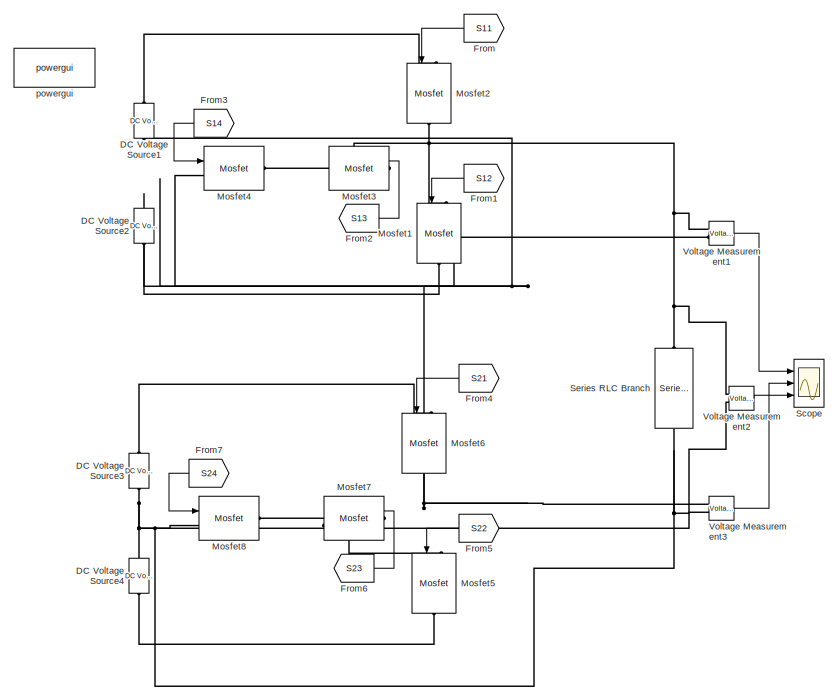
[diagram: root canvas - part 1/2, right side, full height]
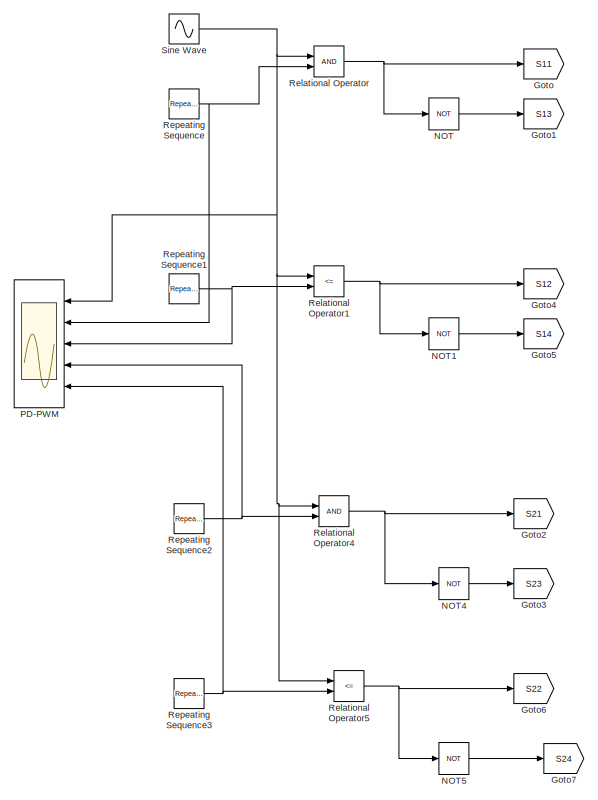
[diagram: root canvas - part 2/2, left side, full height]
MODEL slx_5e660100936f
KIND model
CONFIG AbsTol = auto
CONFIG EnableMultiTasking = off
CONFIG FixedStep = auto
CONFIG MaxStep = 1e-6
CONFIG MinStep = auto
CONFIG RelTol = 1e-5
CONFIG SampleTimeConstraint = Unconstrained
CONFIG SolverName = ode45
CONFIG StartTime = 0.0
CONFIG StopTime = 0.5
BLOCK [Reference] DC Voltage Source1  REF=spsDCVoltageSourceLib/DC Voltage Source
  Ports = [0, 0, 0, 0, 0, 1, 1]
  SourceBlock = spsDCVoltageSourceLib/DC Voltage Source
  SourceProductBaseCode = PS
  SourceType = DC Voltage Source
BLOCK [Reference] DC Voltage Source2  REF=spsDCVoltageSourceLib/DC Voltage Source
  Ports = [0, 0, 0, 0, 0, 1, 1]
  SourceBlock = spsDCVoltageSourceLib/DC Voltage Source
  SourceProductBaseCode = PS
  SourceType = DC Voltage Source
BLOCK [Reference] DC Voltage Source3  REF=spsDCVoltageSourceLib/DC Voltage Source
  Ports = [0, 0, 0, 0, 0, 1, 1]
  SourceBlock = spsDCVoltageSourceLib/DC Voltage Source
  SourceProductBaseCode = PS
  SourceType = DC Voltage Source
BLOCK [Reference] DC Voltage Source4  REF=spsDCVoltageSourceLib/DC Voltage Source
  Ports = [0, 0, 0, 0, 0, 1, 1]
  SourceBlock = spsDCVoltageSourceLib/DC Voltage Source
  SourceProductBaseCode = PS
  SourceType = DC Voltage Source
BLOCK [From] From
  GotoTag = S11
  NameLocation = top
BLOCK [From] From1
  GotoTag = S12
  NameLocation = top
BLOCK [From] From2
  GotoTag = S13
BLOCK [From] From3
  GotoTag = S14
  NameLocation = top
BLOCK [From] From4
  GotoTag = S21
  NameLocation = top
BLOCK [From] From5
  GotoTag = S22
  NameLocation = top
BLOCK [From] From6
  GotoTag = S23
BLOCK [From] From7
  GotoTag = S24
  NameLocation = top
BLOCK [Goto] Goto
  GotoTag = S11
BLOCK [Goto] Goto1
  GotoTag = S13
BLOCK [Goto] Goto2
  GotoTag = S21
BLOCK [Goto] Goto3
  GotoTag = S23
BLOCK [Goto] Goto4
  GotoTag = S12
BLOCK [Goto] Goto5
  GotoTag = S14
BLOCK [Goto] Goto6
  GotoTag = S22
BLOCK [Goto] Goto7
  GotoTag = S24
BLOCK [Reference] Mosfet1  REF=spsMosfetLib/Mosfet
  NameLocation = left
  Ports = [1, 0, 0, 0, 0, 1, 1]
  SourceBlock = spsMosfetLib/Mosfet
  SourceProductBaseCode = PS
  SourceType = Mosfet
BLOCK [Reference] Mosfet2  REF=spsMosfetLib/Mosfet
  NameLocation = left
  Ports = [1, 0, 0, 0, 0, 1, 1]
  SourceBlock = spsMosfetLib/Mosfet
  SourceProductBaseCode = PS
  SourceType = Mosfet
BLOCK [Reference] Mosfet3  REF=spsMosfetLib/Mosfet
  NameLocation = top
  Ports = [1, 0, 0, 0, 0, 1, 1]
  SourceBlock = spsMosfetLib/Mosfet
  SourceProductBaseCode = PS
  SourceType = Mosfet
BLOCK [Reference] Mosfet4  REF=spsMosfetLib/Mosfet
  Ports = [1, 0, 0, 0, 0, 1, 1]
  SourceBlock = spsMosfetLib/Mosfet
  SourceProductBaseCode = PS
  SourceType = Mosfet
BLOCK [Reference] Mosfet5  REF=spsMosfetLib/Mosfet
  NameLocation = left
  Ports = [1, 0, 0, 0, 0, 1, 1]
  SourceBlock = spsMosfetLib/Mosfet
  SourceProductBaseCode = PS
  SourceType = Mosfet
BLOCK [Reference] Mosfet6  REF=spsMosfetLib/Mosfet
  NameLocation = left
  Ports = [1, 0, 0, 0, 0, 1, 1]
  SourceBlock = spsMosfetLib/Mosfet
  SourceProductBaseCode = PS
  SourceType = Mosfet
BLOCK [Reference] Mosfet7  REF=spsMosfetLib/Mosfet
  NameLocation = top
  Ports = [1, 0, 0, 0, 0, 1, 1]
  SourceBlock = spsMosfetLib/Mosfet
  SourceProductBaseCode = PS
  SourceType = Mosfet
BLOCK [Reference] Mosfet8  REF=spsMosfetLib/Mosfet
  Ports = [1, 0, 0, 0, 0, 1, 1]
  SourceBlock = spsMosfetLib/Mosfet
  SourceProductBaseCode = PS
  SourceType = Mosfet
BLOCK [Logic] NOT
  AllPortsSameDT = off
  Operator = NOT
  OutDataTypeStr = boolean
  Ports = [1, 1]
BLOCK [Logic] NOT1
  AllPortsSameDT = off
  Operator = NOT
  OutDataTypeStr = boolean
  Ports = [1, 1]
BLOCK [Logic] NOT4
  AllPortsSameDT = off
  Operator = NOT
  OutDataTypeStr = boolean
  Ports = [1, 1]
BLOCK [Logic] NOT5
  AllPortsSameDT = off
  Operator = NOT
  OutDataTypeStr = boolean
  Ports = [1, 1]
BLOCK [Scope] PD-PWM
  Floating = off
  NameLocation = top
  NumInputPorts = 5
  Ports = [5]
  ScopeSpecificationString = Simulink.scopes.TimeScopeBlockCfg('CurrentConfiguration', extmgr.ConfigurationSet(extmgr.Configuration('Core','General UI',true),extmgr.Configuration('Core','Source UI',true),extmgr.Configuration('Sources','WiredSimulink',true),extmgr.Configuration('Visuals','Time Domain',true,'SerializedDisplays',{struct('MinYLimReal','-2.5','MaxYLimReal','2.5','YLabelReal','','MinYLimMag','0.00000','MaxYLimMag',...<+1553ch>
BLOCK [RelationalOperator] Relational Operator
  InputSameDT = off
  OutDataTypeStr = boolean
  Ports = [2, 1]
  RndMeth = Simplest
BLOCK [RelationalOperator] Relational Operator1
  InputSameDT = off
  Operator = <=
  OutDataTypeStr = boolean
  Ports = [2, 1]
  RndMeth = Simplest
BLOCK [RelationalOperator] Relational Operator4
  InputSameDT = off
  OutDataTypeStr = boolean
  Ports = [2, 1]
  RndMeth = Simplest
BLOCK [RelationalOperator] Relational Operator5
  InputSameDT = off
  Operator = <=
  OutDataTypeStr = boolean
  Ports = [2, 1]
  RndMeth = Simplest
BLOCK [Reference] Repeating Sequence  REF=simulink/Sources/Repeating
Sequence
  Ports = [0, 1]
  SourceBlock = simulink/Sources/Repeating\nSequence
  SourceProductBaseCode = SL
  SourceType = Repeating table
BLOCK [Reference] Repeating Sequence1  REF=simulink/Sources/Repeating
Sequence
  Ports = [0, 1]
  SourceBlock = simulink/Sources/Repeating\nSequence
  SourceProductBaseCode = SL
  SourceType = Repeating table
BLOCK [Reference] Repeating Sequence2  REF=simulink/Sources/Repeating
Sequence
  Ports = [0, 1]
  SourceBlock = simulink/Sources/Repeating\nSequence
  SourceProductBaseCode = SL
  SourceType = Repeating table
BLOCK [Reference] Repeating Sequence3  REF=simulink/Sources/Repeating
Sequence
  Ports = [0, 1]
  SourceBlock = simulink/Sources/Repeating\nSequence
  SourceProductBaseCode = SL
  SourceType = Repeating table
BLOCK [Scope] Scope
  Floating = off
  NumInputPorts = 3
  Ports = [3]
  ScopeSpecificationString = Simulink.scopes.TimeScopeBlockCfg('CurrentConfiguration', extmgr.ConfigurationSet(extmgr.Configuration('Core','General UI',true),extmgr.Configuration('Core','Source UI',true),extmgr.Configuration('Sources','WiredSimulink',true,'DataLogging',true,'DataLoggingVariableName','Vtbridge'),extmgr.Configuration('Visuals','Time Domain',true,'SerializedDisplays',{struct('MinYLimReal','-124.87489','MaxYLimRe...<+2783ch>
BLOCK [Reference] Series RLC Branch  REF=spsSeriesRLCBranchLib/Series RLC Branch
  NameLocation = left
  Ports = [0, 0, 0, 0, 0, 1, 1]
  SourceBlock = spsSeriesRLCBranchLib/Series RLC Branch
  SourceProductBaseCode = PS
  SourceType = Series RLC Branch
BLOCK [Sin] Sine Wave
  Amplitude = 1.7
  Frequency = 50*2*pi
  Ports = [0, 1]
  SampleTime = 0
BLOCK [Reference] Voltage Measurement1  REF=spsVoltageMeasurementLib/Voltage Measurement
  Ports = [0, 1, 0, 0, 0, 2]
  SourceBlock = spsVoltageMeasurementLib/Voltage Measurement
  SourceProductBaseCode = PS
  SourceType = Voltage Measurement
  UserDataPersistent = on
BLOCK [Reference] Voltage Measurement2  REF=spsVoltageMeasurementLib/Voltage Measurement
  Ports = [0, 1, 0, 0, 0, 2]
  SourceBlock = spsVoltageMeasurementLib/Voltage Measurement
  SourceProductBaseCode = PS
  SourceType = Voltage Measurement
  UserDataPersistent = on
BLOCK [Reference] Voltage Measurement3  REF=spsVoltageMeasurementLib/Voltage Measurement
  Ports = [0, 1, 0, 0, 0, 2]
  SourceBlock = spsVoltageMeasurementLib/Voltage Measurement
  SourceProductBaseCode = PS
  SourceType = Voltage Measurement
  UserDataPersistent = on
BLOCK [Reference] powergui  REF=spspowerguiLib/powergui
  Ports = []
  Priority = 1
  SourceBlock = spspowerguiLib/powergui
  SourceProductBaseCode = PS
  SourceType = PSB option menu block
LINE From1:1 -> Mosfet1:1
LINE From2:1 -> Mosfet3:1
LINE From3:1 -> Mosfet4:1
LINE From4:1 -> Mosfet6:1
LINE From5:1 -> Mosfet5:1
LINE From6:1 -> Mosfet7:1
LINE From7:1 -> Mosfet8:1
LINE From:1 -> Mosfet2:1
LINE NOT1:1 -> Goto5:1
LINE NOT4:1 -> Goto3:1
LINE NOT5:1 -> Goto7:1
LINE NOT:1 -> Goto1:1
NET Relational Operator1:1 -> Goto4:1, NOT1:1
NET Relational Operator4:1 -> Goto2:1, NOT4:1
NET Relational Operator5:1 -> Goto6:1, NOT5:1
NET Relational Operator:1 -> Goto:1, NOT:1
NET Repeating Sequence1:1 -> PD-PWM:3, Relational Operator1:2
NET Repeating Sequence2:1 -> PD-PWM:4, Relational Operator4:2
NET Repeating Sequence3:1 -> PD-PWM:5, Relational Operator5:2
NET Repeating Sequence:1 -> PD-PWM:2, Relational Operator:2
NET Sine Wave:1 -> PD-PWM:1, Relational Operator1:1, Relational Operator4:1, Relational Operator5:1, Relational Operator:1
LINE Voltage Measurement1:1 -> Scope:1
LINE Voltage Measurement2:1 -> Scope:3
LINE Voltage Measurement3:1 -> Scope:2
PNET net1: DC Voltage Source1:LConn1 -- DC Voltage Source2:RConn1 -- Mosfet4:LConn1 -- Mosfet5:LConn1 -- Mosfet6:RConn1 -- Mosfet7:LConn1 -- Voltage Measurement1:LConn2 -- Voltage Measurement3:LConn1
PLINE DC Voltage Source1:RConn1 -- Mosfet2:LConn1
PLINE DC Voltage Source2:LConn1 -- Mosfet1:RConn1
PNET net2: DC Voltage Source3:LConn1 -- DC Voltage Source4:RConn1 -- Mosfet8:LConn1 -- Series RLC Branch:RConn1 -- Voltage Measurement2:LConn2 -- Voltage Measurement3:LConn2
PLINE DC Voltage Source3:RConn1 -- Mosfet6:LConn1
PLINE DC Voltage Source4:LConn1 -- Mosfet5:RConn1
PNET net3: Mosfet1:LConn1 -- Mosfet2:RConn1 -- Mosfet3:LConn1 -- Series RLC Branch:LConn1 -- Voltage Measurement1:LConn1 -- Voltage Measurement2:LConn1
PLINE Mosfet3:RConn1 -- Mosfet4:RConn1
PLINE Mosfet7:RConn1 -- Mosfet8:RConn1
note: NET lines group one-source signal fan-out (src -> all destinations, sorted); 1:1 wires keep LINE; PNET lines group multi-terminal physical nets as a canonical sorted terminal list (undirected conserving connections); 2-terminal nets keep the pairwise PLINE form
